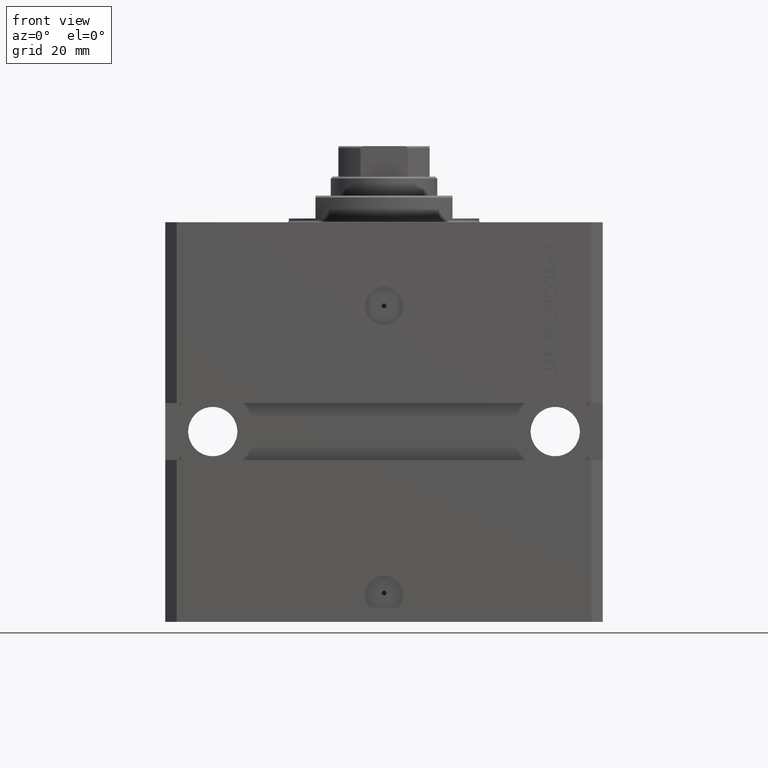
[diagram: clean part render]
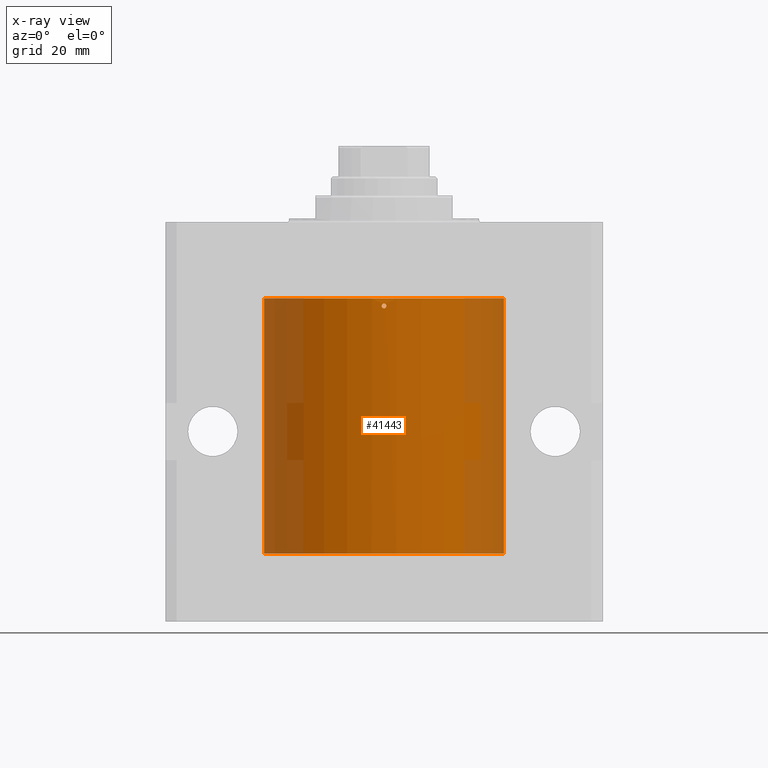
[diagram: x-ray — body ghosted, one internal face saturated and labeled with its STEP entity id]
A machine part, front view, then the same camera in x-ray: the body is ghosted and one INTERNAL B-rep face — a face not visible from any outside direction — is saturated and labeled: STEP entity #41443.
In plain terms, the highlighted cylindrical surface (partial cylindrical patch) has radius 31.5 mm, axis along (0, 0, 1).
Its self-contained STEP definition (entity closure, byte-faithful):
#399 = ORIENTED_EDGE ( 'NONE', *, *, #21792, .T. ) ;
#512 = VECTOR ( 'NONE', #19286, 1000.000000000000000 ) ;
#841 = CARTESIAN_POINT ( 'NONE',  ( 0.6250000000000038858, -31.49379899281761652, -22.00000000000000000 ) ) ;
#1111 = EDGE_CURVE ( 'NONE', #1991, #11791, #2154, .T. ) ;
#1627 = EDGE_LOOP ( 'NONE', ( #34247, #13020 ) ) ;
#1991 = VERTEX_POINT ( 'NONE', #10826 ) ;
#2154 = B_SPLINE_CURVE_WITH_KNOTS ( 'NONE', 3,
 ( #28007, #31020, #35635, #45187, #13383, #3139, #27549, #41697, #38671, #35180 ),
 .UNSPECIFIED., .F., .F.,
 ( 4, 2, 2, 2, 4 ),
 ( 0.001954083649105245370, 0.002442494147866518424, 0.002930904646627791044, 0.003419315145389063663, 0.003907725644150336283 ),
 .UNSPECIFIED. ) ;
#2174 = VERTEX_POINT ( 'NONE', #23262 ) ;
#2213 = FACE_BOUND ( 'NONE', #1627, .T. ) ;
#2885 = ORIENTED_EDGE ( 'NONE', *, *, #7280, .F. ) ;
#2954 = CARTESIAN_POINT ( 'NONE',  ( 31.50000000000000000, -2.492939093807799249E-15, -84.62499999999998579 ) ) ;
#3139 = CARTESIAN_POINT ( 'NONE',  ( 0.1643160695185328923, -31.50000274162724523, -22.62513817806167538 ) ) ;
#3221 = VERTEX_POINT ( 'NONE', #12549 ) ;
#4179 = CARTESIAN_POINT ( 'NONE',  ( 31.49379899281761652, -0.6250000000000218714, -29.00000000000000000 ) ) ;
#4443 = B_SPLINE_CURVE_WITH_KNOTS ( 'NONE', 3,
 ( #20674, #42693, #38750, #17406, #14608, #6934, #10903, #25057, #26181, #8072, #8294, #43361 ),
 .UNSPECIFIED., .F., .F.,
 ( 4, 2, 2, 2, 2, 4 ),
 ( 0.000000000000000000, 0.0002442604561381583818, 0.0004885209122763167636, 0.0009770418245526261546, 0.001465562736828936088, 0.001954083649105245370 ),
 .UNSPECIFIED. ) ;
#4596 = B_SPLINE_CURVE_WITH_KNOTS ( 'NONE', 3,
 ( #6076, #10515, #31394, #42086, #23982, #6310 ),
 .UNSPECIFIED., .F., .F.,
 ( 4, 2, 4 ),
 ( 0.002931422870062024531, 0.003419574257808062970, 0.003907725645554101408 ),
 .UNSPECIFIED. ) ;
#4633 = LINE ( 'NONE', #26245, #512 ) ;
#5240 = B_SPLINE_CURVE_WITH_KNOTS ( 'NONE', 3,
 ( #10127, #34730, #45414, #13609, #24295, #6621 ),
 .UNSPECIFIED., .F., .F.,
 ( 4, 2, 4 ),
 ( 0.001954083649707703992, 0.002442753259884864261, 0.002931422870062024531 ),
 .UNSPECIFIED. ) ;
#5564 = CARTESIAN_POINT ( 'NONE',  ( 31.50000000000000000, 0.000000000000000000, -87.09999999999999432 ) ) ;
#5657 = VECTOR ( 'NONE', #30885, 1000.000000000000000 ) ;
#6076 = CARTESIAN_POINT ( 'NONE',  ( 31.49379899281761652, -0.6250000000000218714, -29.00000000000000000 ) ) ;
#6310 = CARTESIAN_POINT ( 'NONE',  ( 31.50000000000000000, -1.286676774952591455E-15, -29.62500000000000000 ) ) ;
#6400 = DIRECTION ( 'NONE',  ( -0.000000000000000000, -0.000000000000000000, 1.000000000000000000 ) ) ;
#6621 = CARTESIAN_POINT ( 'NONE',  ( 31.49379899281761652, -0.6250000000000218714, -29.00000000000000000 ) ) ;
#6664 = CARTESIAN_POINT ( 'NONE',  ( 31.49379899281761652, -0.6250000000000288658, -83.99999999999998579 ) ) ;
#6934 = CARTESIAN_POINT ( 'NONE',  ( 0.3265099136744073482, -31.49851901558239220, -21.44266766721194983 ) ) ;
#7280 = EDGE_CURVE ( 'NONE', #29830, #27183, #9400, .T. ) ;
#7283 = ORIENTED_EDGE ( 'NONE', *, *, #8849, .T. ) ;
#7365 = CARTESIAN_POINT ( 'NONE',  ( 31.49527967292564057, -0.5573624224366642288, -84.32645312595958842 ) ) ;
#8072 = CARTESIAN_POINT ( 'NONE',  ( -0.5585547059209764464, -31.49526381584878010, -21.67461485254990450 ) ) ;
#8294 = CARTESIAN_POINT ( 'NONE',  ( -0.6249999999998562261, -31.49379899281762363, -21.83683388490861077 ) ) ;
#8812 = EDGE_CURVE ( 'NONE', #18325, #3221, #4633, .T. ) ;
#8849 = EDGE_CURVE ( 'NONE', #29830, #33763, #39939, .T. ) ;
#9073 = LINE ( 'NONE', #5564, #42117 ) ;
#9400 = CIRCLE ( 'NONE', #32366, 31.50000000000000000 ) ;
#9617 = CARTESIAN_POINT ( 'NONE',  ( 31.49851930977805381, -0.3264760966898029859, -83.44265952683146281 ) ) ;
#9966 = DIRECTION ( 'NONE',  ( 1.000000000000000000, 0.000000000000000000, 0.000000000000000000 ) ) ;
#10085 = AXIS2_PLACEMENT_3D ( 'NONE', #27554, #6400, #10825 ) ;
#10127 = CARTESIAN_POINT ( 'NONE',  ( 31.50000000000006395, 3.442404531757459093E-13, -28.37499999999677058 ) ) ;
#10515 = CARTESIAN_POINT ( 'NONE',  ( 31.49379899281760942, -0.6250000000000217604, -29.16477543879956613 ) ) ;
#10825 = DIRECTION ( 'NONE',  ( 1.000000000000000000, 0.000000000000000000, 0.000000000000000000 ) ) ;
#10826 = CARTESIAN_POINT ( 'NONE',  ( -0.6250000000032320813, -31.49379899281755257, -21.99999999999966604 ) ) ;
#10869 = CARTESIAN_POINT ( 'NONE',  ( 31.49379899281760942, -0.6250000000000288658, -84.16477543879955192 ) ) ;
#10903 = CARTESIAN_POINT ( 'NONE',  ( 0.1632852082560532214, -31.49999885166899460, -21.37505787588663964 ) ) ;
#11044 = CARTESIAN_POINT ( 'NONE',  ( 31.50000000000006395, 3.442404755096224483E-13, -83.37499999999675993 ) ) ;
#11504 = EDGE_CURVE ( 'NONE', #27183, #21453, #9073, .T. ) ;
#11621 = EDGE_CURVE ( 'NONE', #26478, #2174, #37843, .T. ) ;
#11791 = VERTEX_POINT ( 'NONE', #841 ) ;
#12096 = CARTESIAN_POINT ( 'NONE',  ( -31.50000000000000000, 3.857637417314162689E-15, -20.00000000000000355 ) ) ;
#12549 = CARTESIAN_POINT ( 'NONE',  ( 31.50000000000000000, -1.286676774952591455E-15, -29.62500000000000000 ) ) ;
#12597 = ORIENTED_EDGE ( 'NONE', *, *, #11504, .F. ) ;
#13020 = ORIENTED_EDGE ( 'NONE', *, *, #1111, .T. ) ;
#13162 = CYLINDRICAL_SURFACE ( 'NONE', #10085, 31.50000000000000000 ) ;
#13383 = CARTESIAN_POINT ( 'NONE',  ( -0.1653655539801978380, -31.49999724963134540, -22.62486138137118630 ) ) ;
#13609 = CARTESIAN_POINT ( 'NONE',  ( 31.49528358446201892, -0.5571510427948019872, -28.67320073400602354 ) ) ;
#13631 = DIRECTION ( 'NONE',  ( 1.000000000000000000, 0.000000000000000000, 0.000000000000000000 ) ) ;
#14608 = CARTESIAN_POINT ( 'NONE',  ( 0.4995391884764857626, -31.49609162775374216, -21.61563511814824068 ) ) ;
#15811 = DIRECTION ( 'NONE',  ( -0.000000000000000000, -0.000000000000000000, 1.000000000000000000 ) ) ;
#16411 = FACE_OUTER_BOUND ( 'NONE', #32347, .T. ) ;
#16615 = CARTESIAN_POINT ( 'NONE',  ( 31.50000000000006395, 3.442404531757459093E-13, -28.37499999999677058 ) ) ;
#16738 = CARTESIAN_POINT ( 'NONE',  ( 31.50000000000000000, 0.000000000000000000, -87.09999999999999432 ) ) ;
#16940 = CARTESIAN_POINT ( 'NONE',  ( -31.50000000000000000, 3.857637417314162689E-15, -87.09999999999999432 ) ) ;
#17059 = ORIENTED_EDGE ( 'NONE', *, *, #42499, .T. ) ;
#17342 = B_SPLINE_CURVE_WITH_KNOTS ( 'NONE', 3,
 ( #44666, #27268, #9617, #30275, #34681, #45138 ),
 .UNSPECIFIED., .F., .F.,
 ( 4, 2, 4 ),
 ( 0.001954083649707730446, 0.002442753259884901558, 0.002931422870062072236 ),
 .UNSPECIFIED. ) ;
#17406 = CARTESIAN_POINT ( 'NONE',  ( 0.5459820889822476486, -31.49528359085879714, -21.68497154358692924 ) ) ;
#18118 = B_SPLINE_CURVE_WITH_KNOTS ( 'NONE', 3,
 ( #6664, #10869, #7365, #42435, #45686, #2954 ),
 .UNSPECIFIED., .F., .F.,
 ( 4, 2, 4 ),
 ( 0.002931422870062072236, 0.003419574257808113277, 0.003907725645554154317 ),
 .UNSPECIFIED. ) ;
#18325 = VERTEX_POINT ( 'NONE', #11044 ) ;
#19286 = DIRECTION ( 'NONE',  ( -0.000000000000000000, -0.000000000000000000, 1.000000000000000000 ) ) ;
#20026 = EDGE_CURVE ( 'NONE', #33763, #2174, #41514, .T. ) ;
#20674 = CARTESIAN_POINT ( 'NONE',  ( 0.6250000000000038858, -31.49379899281761652, -22.00000000000000000 ) ) ;
#21453 = VERTEX_POINT ( 'NONE', #24836 ) ;
#21792 = EDGE_CURVE ( 'NONE', #33120, #21453, #18118, .T. ) ;
#22348 = ORIENTED_EDGE ( 'NONE', *, *, #23101, .T. ) ;
#22767 = DIRECTION ( 'NONE',  ( -0.000000000000000000, -0.000000000000000000, 1.000000000000000000 ) ) ;
#23101 = EDGE_CURVE ( 'NONE', #26478, #35810, #5240, .T. ) ;
#23262 = CARTESIAN_POINT ( 'NONE',  ( 31.50000000000000000, 0.000000000000000000, -20.00000000000000355 ) ) ;
#23982 = CARTESIAN_POINT ( 'NONE',  ( 31.50000000000000000, -0.1650602271992122894, -29.62500000000000711 ) ) ;
#24295 = CARTESIAN_POINT ( 'NONE',  ( 31.49379899281761652, -0.6250000000000218714, -28.83504963528477916 ) ) ;
#24706 = ORIENTED_EDGE ( 'NONE', *, *, #20026, .T. ) ;
#24836 = CARTESIAN_POINT ( 'NONE',  ( 31.50000000000000000, -2.492939093807799249E-15, -84.62499999999998579 ) ) ;
#25057 = CARTESIAN_POINT ( 'NONE',  ( -0.1628418490787267303, -31.50000114677095553, -21.37494220274029288 ) ) ;
#26181 = CARTESIAN_POINT ( 'NONE',  ( -0.3251151328894873460, -31.49853847942450003, -21.44128808491867488 ) ) ;
#26245 = CARTESIAN_POINT ( 'NONE',  ( 31.50000000000000000, 0.000000000000000000, -87.09999999999999432 ) ) ;
#26478 = VERTEX_POINT ( 'NONE', #16615 ) ;
#26670 = EDGE_CURVE ( 'NONE', #11791, #1991, #4443, .T. ) ;
#26842 = CARTESIAN_POINT ( 'NONE',  ( 31.49379899281761652, -0.6250000000000288658, -83.99999999999998579 ) ) ;
#27183 = VERTEX_POINT ( 'NONE', #37712 ) ;
#27268 = CARTESIAN_POINT ( 'NONE',  ( 31.50000000000000000, -0.1632157801386601437, -83.37499999999985789 ) ) ;
#27549 = CARTESIAN_POINT ( 'NONE',  ( 0.3261569241153874366, -31.49852310551305834, -22.55756250434718524 ) ) ;
#27554 = CARTESIAN_POINT ( 'NONE',  ( 0.000000000000000000, 0.000000000000000000, -87.09999999999999432 ) ) ;
#28007 = CARTESIAN_POINT ( 'NONE',  ( -0.6250000000032320813, -31.49379899281755257, -21.99999999999966604 ) ) ;
#28442 = ORIENTED_EDGE ( 'NONE', *, *, #32498, .T. ) ;
#29493 = CARTESIAN_POINT ( 'NONE',  ( -31.50000000000000000, 3.857637417314162689E-15, -87.09999999999999432 ) ) ;
#29830 = VERTEX_POINT ( 'NONE', #16940 ) ;
#30275 = CARTESIAN_POINT ( 'NONE',  ( 31.49528358446202603, -0.5571510427948113131, -83.67320073400603064 ) ) ;
#30885 = DIRECTION ( 'NONE',  ( -0.000000000000000000, -0.000000000000000000, 1.000000000000000000 ) ) ;
#31020 = CARTESIAN_POINT ( 'NONE',  ( -0.6250000000001370015, -31.49379899281761652, -22.16312923694681913 ) ) ;
#31088 = CARTESIAN_POINT ( 'NONE',  ( 0.000000000000000000, 0.000000000000000000, -20.00000000000000355 ) ) ;
#31203 = ORIENTED_EDGE ( 'NONE', *, *, #11621, .F. ) ;
#31394 = CARTESIAN_POINT ( 'NONE',  ( 31.49527967292564057, -0.5573624224366614532, -29.32645312595960263 ) ) ;
#32347 = EDGE_LOOP ( 'NONE', ( #2885, #7283, #24706, #31203, #22348, #28442, #45221, #17059, #399, #12597 ) ) ;
#32366 = AXIS2_PLACEMENT_3D ( 'NONE', #41246, #45434, #13631 ) ;
#32498 = EDGE_CURVE ( 'NONE', #35810, #3221, #4596, .T. ) ;
#33120 = VERTEX_POINT ( 'NONE', #26842 ) ;
#33763 = VERTEX_POINT ( 'NONE', #12096 ) ;
#34080 = AXIS2_PLACEMENT_3D ( 'NONE', #31088, #41765, #9966 ) ;
#34247 = ORIENTED_EDGE ( 'NONE', *, *, #26670, .T. ) ;
#34681 = CARTESIAN_POINT ( 'NONE',  ( 31.49379899281761652, -0.6250000000000287548, -83.83504963528476139 ) ) ;
#34730 = CARTESIAN_POINT ( 'NONE',  ( 31.50000000000000711, -0.1632157801386582285, -28.37499999999985079 ) ) ;
#35180 = CARTESIAN_POINT ( 'NONE',  ( 0.6250000000000038858, -31.49379899281761652, -22.00000000000000000 ) ) ;
#35635 = CARTESIAN_POINT ( 'NONE',  ( -0.5574125734152228784, -31.49527830517388693, -22.32630819604779049 ) ) ;
#35810 = VERTEX_POINT ( 'NONE', #4179 ) ;
#37712 = CARTESIAN_POINT ( 'NONE',  ( 31.50000000000000000, 0.000000000000000000, -87.09999999999999432 ) ) ;
#37843 = LINE ( 'NONE', #16738, #5657 ) ;
#38671 = CARTESIAN_POINT ( 'NONE',  ( 0.6250000000000036637, -31.49379899281762363, -22.16514784144521499 ) ) ;
#38750 = CARTESIAN_POINT ( 'NONE',  ( 0.6087381000030255285, -31.49413314945679332, -21.83636230433018000 ) ) ;
#39939 = LINE ( 'NONE', #29493, #41316 ) ;
#41246 = CARTESIAN_POINT ( 'NONE',  ( 0.000000000000000000, 0.000000000000000000, -87.09999999999999432 ) ) ;
#41316 = VECTOR ( 'NONE', #22767, 1000.000000000000000 ) ;
#41443 = ADVANCED_FACE ( 'NONE', ( #2213, #16411 ), #13162, .F. ) ;
#41514 = CIRCLE ( 'NONE', #34080, 31.50000000000000000 ) ;
#41697 = CARTESIAN_POINT ( 'NONE',  ( 0.5570988765663296149, -31.49528499647870916, -22.32694820251968082 ) ) ;
#41765 = DIRECTION ( 'NONE',  ( 0.000000000000000000, 0.000000000000000000, 1.000000000000000000 ) ) ;
#42086 = CARTESIAN_POINT ( 'NONE',  ( 31.49851597466318864, -0.3267811800504725750, -29.55717014794231901 ) ) ;
#42117 = VECTOR ( 'NONE', #15811, 1000.000000000000000 ) ;
#42435 = CARTESIAN_POINT ( 'NONE',  ( 31.49851597466318864, -0.3267811800504749065, -84.55717014794232966 ) ) ;
#42499 = EDGE_CURVE ( 'NONE', #18325, #33120, #17342, .T. ) ;
#42693 = CARTESIAN_POINT ( 'NONE',  ( 0.6250000000000037748, -31.49379899281763073, -21.91740741203567922 ) ) ;
#43361 = CARTESIAN_POINT ( 'NONE',  ( -0.6250000000032320813, -31.49379899281755257, -21.99999999999966604 ) ) ;
#44666 = CARTESIAN_POINT ( 'NONE',  ( 31.50000000000006395, 3.442404755096224483E-13, -83.37499999999675993 ) ) ;
#45138 = CARTESIAN_POINT ( 'NONE',  ( 31.49379899281761652, -0.6250000000000288658, -83.99999999999998579 ) ) ;
#45187 = CARTESIAN_POINT ( 'NONE',  ( -0.3270938137891216124, -31.49851224953870243, -22.55695193041252367 ) ) ;
#45221 = ORIENTED_EDGE ( 'NONE', *, *, #8812, .F. ) ;
#45414 = CARTESIAN_POINT ( 'NONE',  ( 31.49851930977803960, -0.3264760966897996552, -28.44265952683147702 ) ) ;
#45434 = DIRECTION ( 'NONE',  ( 0.000000000000000000, 0.000000000000000000, 1.000000000000000000 ) ) ;
#45686 = CARTESIAN_POINT ( 'NONE',  ( 31.50000000000000000, -0.1650602271992127057, -84.62500000000000000 ) ) ;